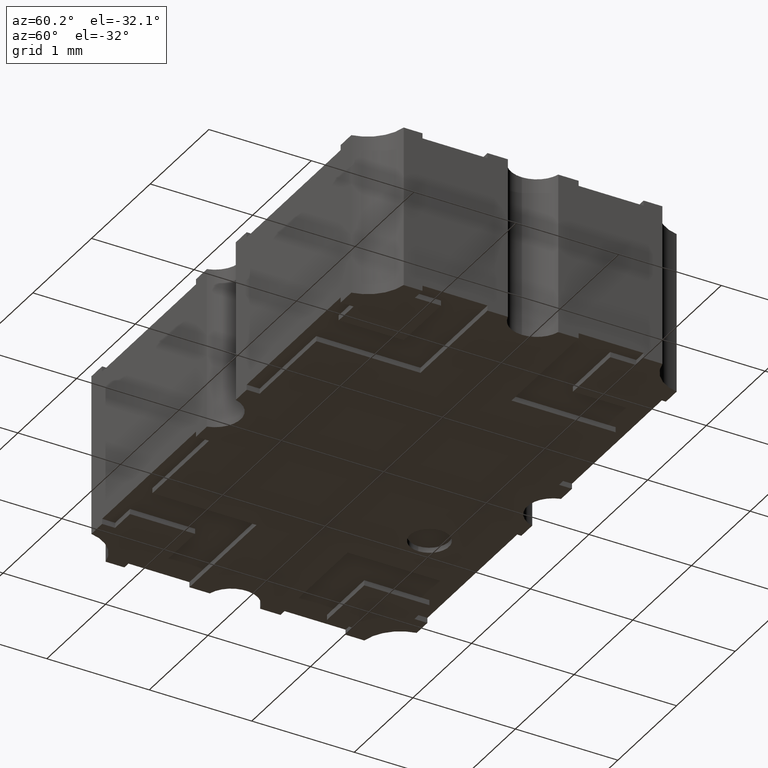
[diagram: clean part render]
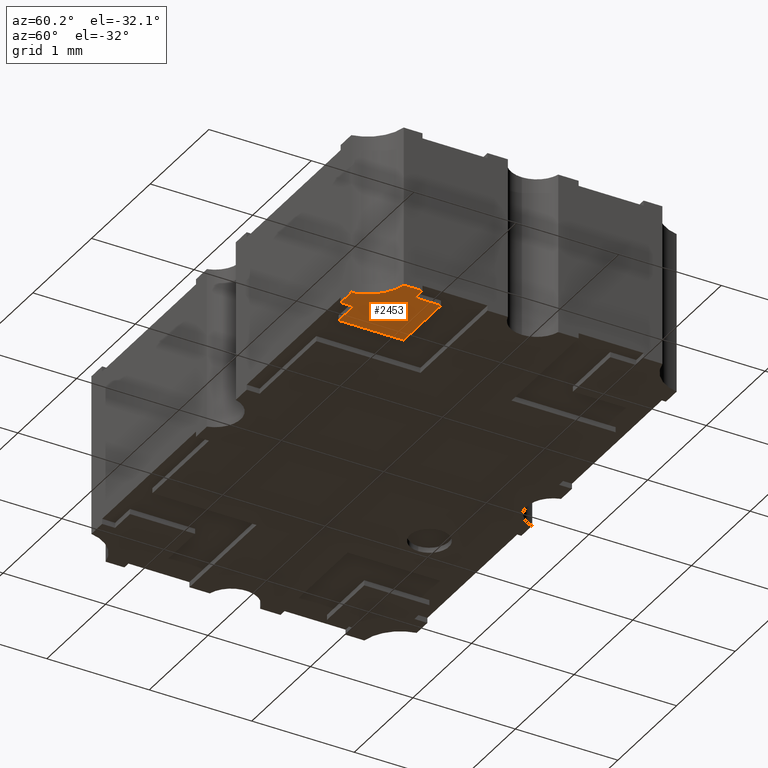
[diagram: same view with one face highlighted and labeled with its STEP entity id]
A machine part, auxiliary view. The second image highlights one B-rep face of the part: STEP entity #2453.
In plain terms, the highlighted planar face has unit normal (0, 0, 1).
Its self-contained STEP definition (entity closure, byte-faithful):
#314 = EDGE_CURVE ( 'NONE', #6371, #7003, #6403, .T. ) ;
#541 = DIRECTION ( 'NONE',  ( 0.000000000000000000, -1.000000000000000000, 0.000000000000000000 ) ) ;
#658 = CARTESIAN_POINT ( 'NONE',  ( 0.1024999999999922778, -0.06499999999999774014, 0.000000000000000000 ) ) ;
#800 = VERTEX_POINT ( 'NONE', #4648 ) ;
#874 = CARTESIAN_POINT ( 'NONE',  ( 0.09500000000005234813, -0.03249999999999883538, 0.000000000000000000 ) ) ;
#927 = CARTESIAN_POINT ( 'NONE',  ( 0.08000000000006599055, -0.06249999999999768241, 0.000000000000000000 ) ) ;
#1265 = VECTOR ( 'NONE', #5687, 39.37007874015748143 ) ;
#1563 = DIRECTION ( 'NONE',  ( 1.000000000000000000, 0.000000000000000000, 0.000000000000000000 ) ) ;
#1648 = DIRECTION ( 'NONE',  ( 0.000000000000000000, 0.000000000000000000, 1.000000000000000000 ) ) ;
#1793 = CIRCLE ( 'NONE', #3413, 0.01549999999997453762 ) ;
#1822 = CARTESIAN_POINT ( 'NONE',  ( 0.08000000000006599055, -0.06249999999999768241, 0.000000000000000000 ) ) ;
#1829 = EDGE_CURVE ( 'NONE', #11173, #800, #8981, .T. ) ;
#2005 = LINE ( 'NONE', #1822, #1265 ) ;
#2266 = VECTOR ( 'NONE', #8032, 39.37007874015748143 ) ;
#2453 = ADVANCED_FACE ( 'NONE', ( #7569 ), #6538, .F. ) ;
#2504 = CARTESIAN_POINT ( 'NONE',  ( 0.09999999999999228950, -0.04249999999998974043, 0.000000000000000000 ) ) ;
#2768 = CARTESIAN_POINT ( 'NONE',  ( 0.09500000000005234813, -0.04249999999998974043, 0.000000000000000000 ) ) ;
#2819 = AXIS2_PLACEMENT_3D ( 'NONE', #7499, #1648, #5576 ) ;
#2892 = EDGE_LOOP ( 'NONE', ( #7759, #6558, #3334, #3221, #11507, #9894, #10335, #11301, #7134 ) ) ;
#2995 = EDGE_CURVE ( 'NONE', #7607, #10667, #8577, .T. ) ;
#3007 = EDGE_CURVE ( 'NONE', #800, #4492, #1793, .T. ) ;
#3221 = ORIENTED_EDGE ( 'NONE', *, *, #4317, .T. ) ;
#3334 = ORIENTED_EDGE ( 'NONE', *, *, #2995, .T. ) ;
#3413 = AXIS2_PLACEMENT_3D ( 'NONE', #658, #4579, #12423 ) ;
#3683 = CARTESIAN_POINT ( 'NONE',  ( 0.09500000000005234813, -0.04249999999998974043, 0.000000000000000000 ) ) ;
#4317 = EDGE_CURVE ( 'NONE', #10667, #6371, #9188, .T. ) ;
#4492 = VERTEX_POINT ( 'NONE', #6477 ) ;
#4579 = DIRECTION ( 'NONE',  ( -0.000000000000000000, -0.000000000000000000, -1.000000000000000000 ) ) ;
#4648 = CARTESIAN_POINT ( 'NONE',  ( 0.08720294145923973561, -0.06249999999999771710, 0.000000000000000000 ) ) ;
#4756 = DIRECTION ( 'NONE',  ( -0.000000000000000000, 1.000000000000000000, -0.000000000000000000 ) ) ;
#4843 = CARTESIAN_POINT ( 'NONE',  ( 0.07000000000007508549, -0.05750000000000451972, 0.000000000000000000 ) ) ;
#5155 = VERTEX_POINT ( 'NONE', #12605 ) ;
#5438 = CARTESIAN_POINT ( 'NONE',  ( 0.09500000000005234813, -0.03249999999999883538, 0.000000000000000000 ) ) ;
#5576 = DIRECTION ( 'NONE',  ( 1.000000000000000000, 0.000000000000000000, -0.000000000000000000 ) ) ;
#5687 = DIRECTION ( 'NONE',  ( 0.000000000000000000, 1.000000000000000000, 0.000000000000000000 ) ) ;
#5702 = VECTOR ( 'NONE', #8762, 39.37007874015748143 ) ;
#6252 = VECTOR ( 'NONE', #1563, 39.37007874015748143 ) ;
#6371 = VERTEX_POINT ( 'NONE', #874 ) ;
#6403 = LINE ( 'NONE', #5438, #10899 ) ;
#6477 = CARTESIAN_POINT ( 'NONE',  ( 0.09999999999999228950, -0.04970294145924519097, 0.000000000000000000 ) ) ;
#6538 = PLANE ( 'NONE',  #2819 ) ;
#6558 = ORIENTED_EDGE ( 'NONE', *, *, #9898, .T. ) ;
#6621 = EDGE_CURVE ( 'NONE', #11173, #5155, #2005, .T. ) ;
#7003 = VERTEX_POINT ( 'NONE', #2768 ) ;
#7134 = ORIENTED_EDGE ( 'NONE', *, *, #1829, .F. ) ;
#7167 = CARTESIAN_POINT ( 'NONE',  ( 0.07000000000007508549, -0.05750000000000451972, 0.000000000000000000 ) ) ;
#7499 = CARTESIAN_POINT ( 'NONE',  ( -0.1024999999999917921, 0.06499999999999772626, 0.000000000000000000 ) ) ;
#7569 = FACE_OUTER_BOUND ( 'NONE', #2892, .T. ) ;
#7607 = VERTEX_POINT ( 'NONE', #7167 ) ;
#7658 = VECTOR ( 'NONE', #12293, 39.37007874015748143 ) ;
#7684 = CARTESIAN_POINT ( 'NONE',  ( 0.07000000000007508549, -0.03249999999999883538, 0.000000000000000000 ) ) ;
#7693 = EDGE_CURVE ( 'NONE', #7003, #8948, #10376, .T. ) ;
#7759 = ORIENTED_EDGE ( 'NONE', *, *, #6621, .T. ) ;
#8032 = DIRECTION ( 'NONE',  ( 1.000000000000000000, 0.000000000000000000, 0.000000000000000000 ) ) ;
#8204 = CARTESIAN_POINT ( 'NONE',  ( 0.08720294145923973561, -0.06249999999999771710, 0.000000000000000000 ) ) ;
#8359 = LINE ( 'NONE', #12271, #10208 ) ;
#8577 = LINE ( 'NONE', #4843, #5702 ) ;
#8762 = DIRECTION ( 'NONE',  ( 0.000000000000000000, 1.000000000000000000, 0.000000000000000000 ) ) ;
#8948 = VERTEX_POINT ( 'NONE', #2504 ) ;
#8981 = LINE ( 'NONE', #8204, #10730 ) ;
#9188 = LINE ( 'NONE', #12015, #2266 ) ;
#9344 = CARTESIAN_POINT ( 'NONE',  ( 0.08000000000006599055, -0.05750000000000451972, 0.000000000000000000 ) ) ;
#9894 = ORIENTED_EDGE ( 'NONE', *, *, #7693, .T. ) ;
#9898 = EDGE_CURVE ( 'NONE', #5155, #7607, #10493, .T. ) ;
#10061 = DIRECTION ( 'NONE',  ( 1.000000000000000000, -0.000000000000000000, -0.000000000000000000 ) ) ;
#10208 = VECTOR ( 'NONE', #4756, 39.37007874015748143 ) ;
#10335 = ORIENTED_EDGE ( 'NONE', *, *, #11618, .F. ) ;
#10376 = LINE ( 'NONE', #3683, #6252 ) ;
#10493 = LINE ( 'NONE', #9344, #7658 ) ;
#10667 = VERTEX_POINT ( 'NONE', #7684 ) ;
#10730 = VECTOR ( 'NONE', #10061, 39.37007874015748143 ) ;
#10899 = VECTOR ( 'NONE', #541, 39.37007874015748143 ) ;
#11173 = VERTEX_POINT ( 'NONE', #927 ) ;
#11301 = ORIENTED_EDGE ( 'NONE', *, *, #3007, .F. ) ;
#11507 = ORIENTED_EDGE ( 'NONE', *, *, #314, .T. ) ;
#11618 = EDGE_CURVE ( 'NONE', #4492, #8948, #8359, .T. ) ;
#12015 = CARTESIAN_POINT ( 'NONE',  ( 0.07000000000007508549, -0.03249999999999883538, 0.000000000000000000 ) ) ;
#12271 = CARTESIAN_POINT ( 'NONE',  ( 0.09999999999999228950, -0.009682458365518550880, 0.000000000000000000 ) ) ;
#12293 = DIRECTION ( 'NONE',  ( -1.000000000000000000, 0.000000000000000000, 0.000000000000000000 ) ) ;
#12423 = DIRECTION ( 'NONE',  ( 1.000000000000000000, 0.000000000000000000, 0.000000000000000000 ) ) ;
#12605 = CARTESIAN_POINT ( 'NONE',  ( 0.08000000000006599055, -0.05750000000000451972, 0.000000000000000000 ) ) ;